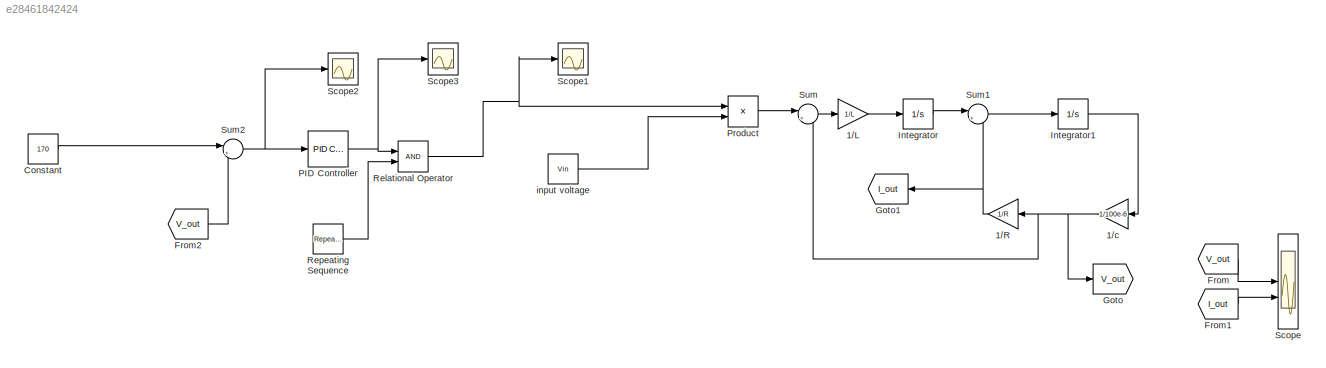
MODEL slx_e28461842424
KIND model
CONFIG AbsTol = auto
CONFIG EnableMultiTasking = off
CONFIG FixedStep = 1e-6
CONFIG MaxStep = auto
CONFIG MinStep = auto
CONFIG RelTol = 1e-3
CONFIG SampleTimeConstraint = Unconstrained
CONFIG SolverName = FixedStepAuto
CONFIG StartTime = 0.0
CONFIG StopTime = 1
BLOCK [Gain] 1//L
  Gain = 1/L
BLOCK [Gain] 1//R
  Gain = 1/R
BLOCK [Gain] 1//c
  Gain = 1/100e-6
  NameLocation = top
BLOCK [Constant] Constant
  Value = 170
BLOCK [From] From
  GotoTag = V_out
BLOCK [From] From1
  GotoTag = I_out
BLOCK [From] From2
  GotoTag = V_out
BLOCK [Goto] Goto
  GotoTag = V_out
BLOCK [Goto] Goto1
  GotoTag = I_out
BLOCK [Integrator] Integrator
BLOCK [Integrator] Integrator1
BLOCK [Reference] PID Controller  REF=slpidlib/PID Controller
  LibrarySourceBlock = simulink/Continuous/PID Controller
  SourceBlock = slpidlib/PID Controller
  SourceType = PID 1dof
BLOCK [Product] Product
BLOCK [RelationalOperator] Relational Operator
  InputSameDT = off
  OutDataTypeStr = boolean
  RndMeth = Simplest
BLOCK [Reference] Repeating Sequence  REF=simulink/Sources/Repeating
Sequence
  SourceBlock = simulink/Sources/Repeating\nSequence
  SourceType = Repeating table
BLOCK [Scope] Scope
  Floating = off
  NumInputPorts = 2
  ScopeSpecificationString = Simulink.scopes.TimeScopeBlockCfg('CurrentConfiguration', extmgr.ConfigurationSet(extmgr.Configuration('Core','General UI',true),extmgr.Configuration('Core','Source UI',true),extmgr.Configuration('Sources','WiredSimulink',true),extmgr.Configuration('Visuals','Time Domain',true,'SerializedDisplays',{struct('MinYLimReal','167.48429','MaxYLimReal','170.53994','YLabelReal','','MinYLimMag','167.48429',...<+2193ch>
BLOCK [Scope] Scope1
  Floating = off
  NumInputPorts = 1
  ScopeSpecificationString = Simulink.scopes.TimeScopeBlockCfg('CurrentConfiguration', extmgr.ConfigurationSet(extmgr.Configuration('Core','General UI',true),extmgr.Configuration('Core','Source UI',true),extmgr.Configuration('Sources','WiredSimulink',true,'DataLoggingVariableName','ScopeData1'),extmgr.Configuration('Visuals','Time Domain',true,'SerializedDisplays',{struct('MinYLimReal','-0.125','MaxYLimReal','1.125','YLabelRe...<+1557ch>
BLOCK [Scope] Scope2
  Floating = off
  NumInputPorts = 1
  ScopeSpecificationString = Simulink.scopes.TimeScopeBlockCfg('CurrentConfiguration', extmgr.ConfigurationSet(extmgr.Configuration('Core','General UI',true),extmgr.Configuration('Core','Source UI',true),extmgr.Configuration('Sources','WiredSimulink',true,'DataLoggingVariableName','ScopeData2'),extmgr.Configuration('Visuals','Time Domain',true,'SerializedDisplays',{struct('MinYLimReal','-25.4209','MaxYLimReal','191.71343','YL...<+1491ch>
BLOCK [Scope] Scope3
  Floating = off
  NumInputPorts = 1
  ScopeSpecificationString = Simulink.scopes.TimeScopeBlockCfg('CurrentConfiguration', extmgr.ConfigurationSet(extmgr.Configuration('Core','General UI',true),extmgr.Configuration('Core','Source UI',true),extmgr.Configuration('Sources','WiredSimulink',true,'DataLoggingVariableName','ScopeData3'),extmgr.Configuration('Visuals','Time Domain',true,'SerializedDisplays',{struct('MinYLimReal','-0.06208','MaxYLimReal','0.55876','YLab...<+1518ch>
BLOCK [Sum] Sum
  Inputs = |+-
BLOCK [Sum] Sum1
  Inputs = |+-
BLOCK [Sum] Sum2
  Inputs = |+-
BLOCK [Constant] input voltage
  Value = Vin
LINE 1//L:1 -> Integrator:1
NET 1//R:1 -> Goto1:1, Sum1:2
NET 1//c:1 -> 1//R:1, Goto:1, Sum:2
LINE Constant:1 -> Sum2:1
LINE From1:1 -> Scope:2
LINE From2:1 -> Sum2:2
LINE From:1 -> Scope:1
LINE Integrator1:1 -> 1//c:1
LINE Integrator:1 -> Sum1:1
NET PID Controller:1 -> Relational Operator:1, Scope3:1
LINE Product:1 -> Sum:1
NET Relational Operator:1 -> Product:1, Scope1:1
LINE Repeating Sequence:1 -> Relational Operator:2
LINE Sum1:1 -> Integrator1:1
NET Sum2:1 -> PID Controller:1, Scope2:1
LINE Sum:1 -> 1//L:1
LINE input voltage:1 -> Product:2
note: NET lines group one-source signal fan-out (src -> all destinations, sorted); 1:1 wires keep LINE
